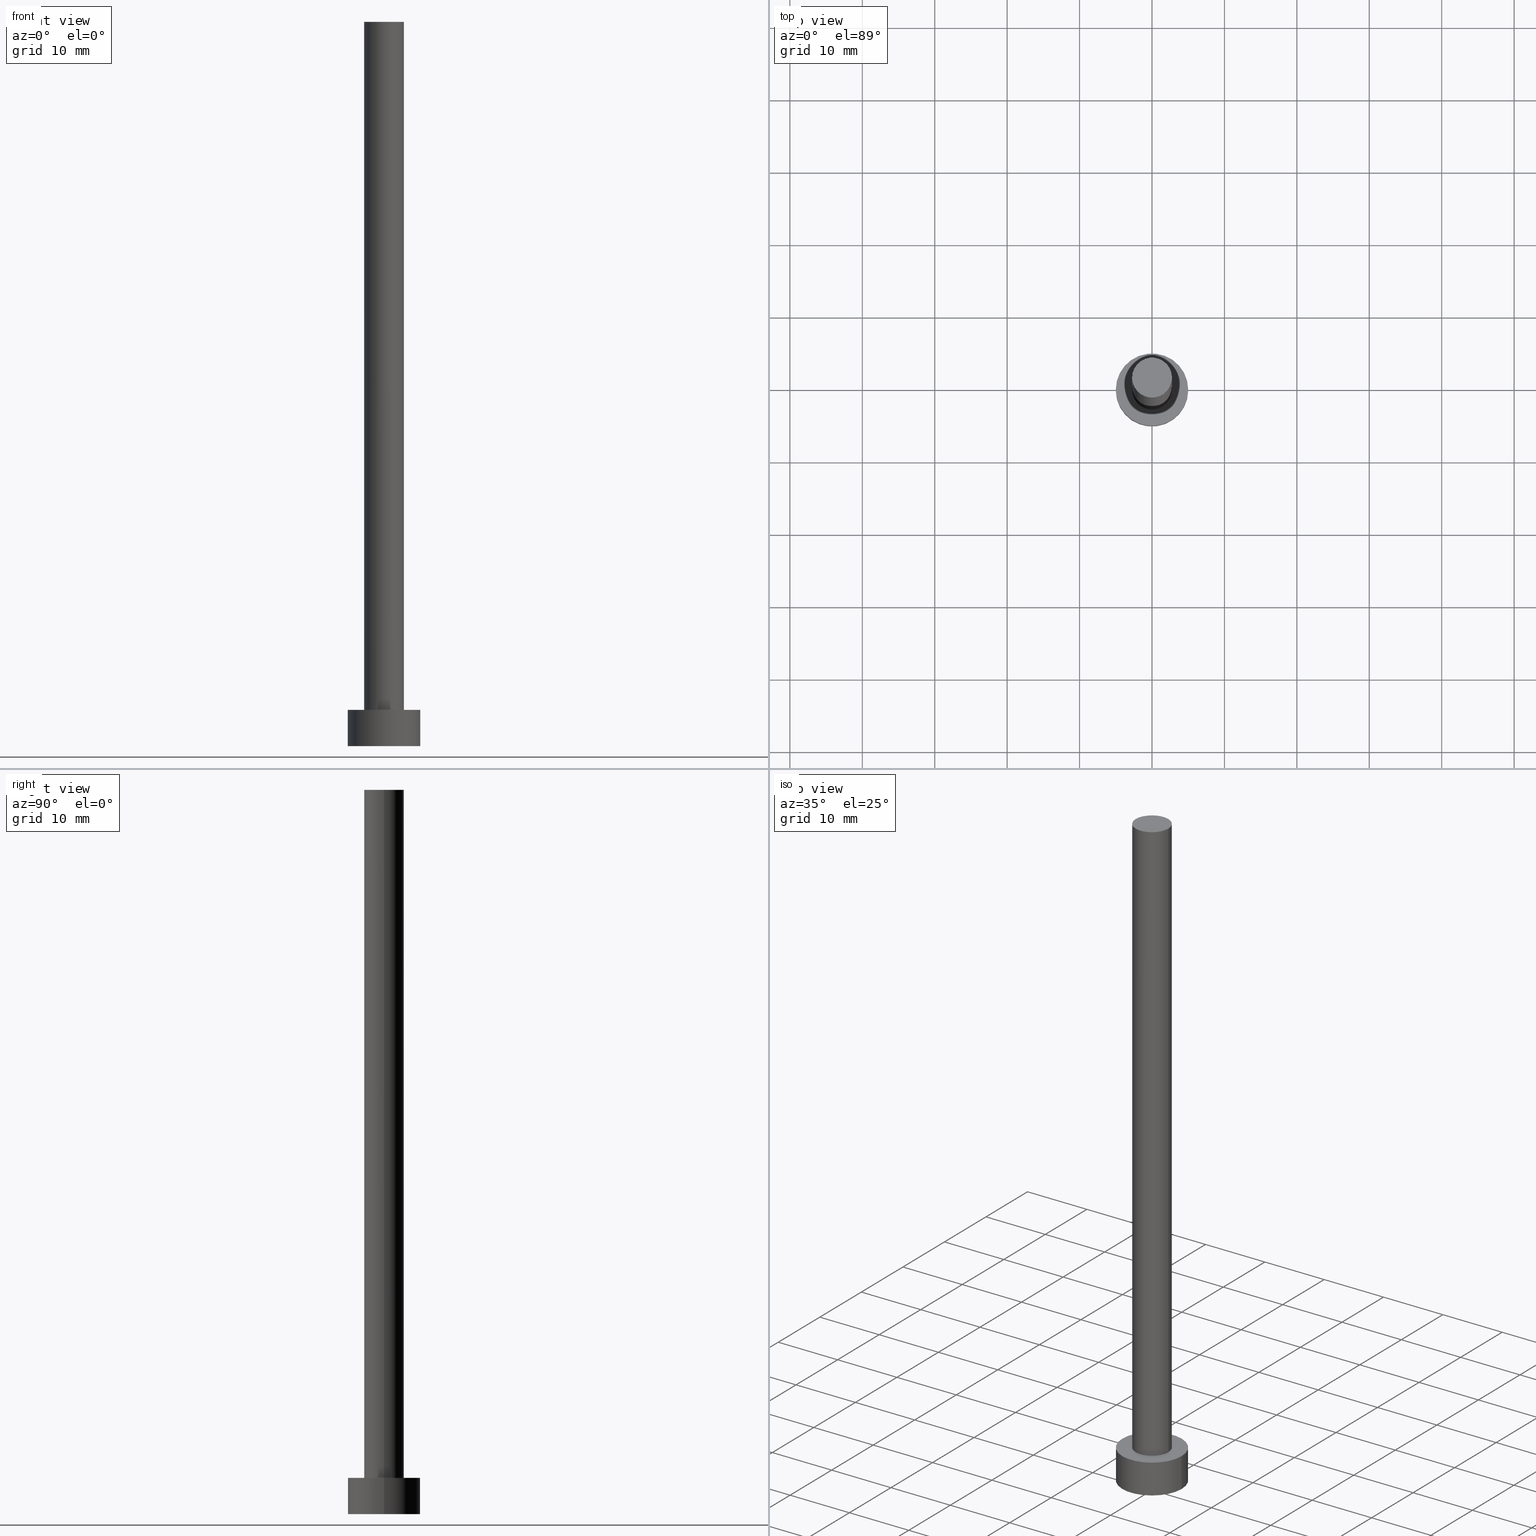
[diagram: canonical four-view strip — front | top / right | iso, engineering-drawing reading convention]
A machine part, canonical four-view strip (front | top / right | iso — engineering-drawing reading convention). The complete STEP part file that produces these views, byte-faithful:
ISO-10303-21;
HEADER;
FILE_DESCRIPTION (( 'STEP AP203' ),
    '1' );
FILE_NAME ('e686.STEP',
    '2023-02-13T16:02:20',
    ( '' ),
    ( '' ),
    'SwSTEP 2.0',
    'SolidWorks 2019',
    '' );
FILE_SCHEMA (( 'CONFIG_CONTROL_DESIGN' ));
ENDSEC;

DATA;
#1 = CARTESIAN_POINT ( 'NONE',  ( 0.000000000000000000, 0.000000000000000000, 5.000000000000000000 ) ) ;
#2 = CARTESIAN_POINT ( 'NONE',  ( 0.000000000000000000, 0.000000000000000000, 100.0000000000000000 ) ) ;
#3 = DIRECTION ( 'NONE',  ( 0.000000000000000000, 0.000000000000000000, 1.000000000000000000 ) ) ;
#4 = APPROVAL_PERSON_ORGANIZATION ( #132, #159, #179 ) ;
#5 = APPROVAL_PERSON_ORGANIZATION ( #103, #241, #72 ) ;
#6 = FACE_BOUND ( 'NONE', #122, .T. ) ;
#7 = AXIS2_PLACEMENT_3D ( 'NONE', #251, #81, #61 ) ;
#8 = PERSON_AND_ORGANIZATION ( #45, #143 ) ;
#9 = PERSON_AND_ORGANIZATION ( #45, #143 ) ;
#10 = ADVANCED_FACE ( 'NONE', ( #67 ), #150, .F. ) ;
#11 = DIRECTION ( 'NONE',  ( 1.000000000000000000, 0.000000000000000000, 0.000000000000000000 ) ) ;
#12 = CIRCLE ( 'NONE', #40, 2.750000000000000000 ) ;
#13 = APPROVAL ( #94, 'NEUR�EN�' ) ;
#14 = CARTESIAN_POINT ( 'NONE',  ( 0.000000000000000000, 0.000000000000000000, 0.000000000000000000 ) ) ;
#15 = ORIENTED_EDGE ( 'NONE', *, *, #176, .T. ) ;
#16 = ORIENTED_EDGE ( 'NONE', *, *, #37, .T. ) ;
#17 = DIRECTION ( 'NONE',  ( -0.000000000000000000, -0.000000000000000000, -1.000000000000000000 ) ) ;
#18 = CYLINDRICAL_SURFACE ( 'NONE', #47, 2.750000000000000000 ) ;
#19 = EDGE_CURVE ( 'NONE', #38, #91, #144, .T. ) ;
#20 = CARTESIAN_POINT ( 'NONE',  ( 0.000000000000000000, 0.000000000000000000, 0.000000000000000000 ) ) ;
#21 = CARTESIAN_POINT ( 'NONE',  ( 0.000000000000000000, 0.000000000000000000, 5.000000000000000000 ) ) ;
#22 = CARTESIAN_POINT ( 'NONE',  ( 0.000000000000000000, 0.000000000000000000, 5.000000000000000000 ) ) ;
#23 = CIRCLE ( 'NONE', #162, 5.000000000000000000 ) ;
#24 = VECTOR ( 'NONE', #196, 1000.000000000000000 ) ;
#25 = PRODUCT ( 'e686', 'e686', '', ( #82 ) ) ;
#26 = PERSON_AND_ORGANIZATION ( #45, #143 ) ;
#27 = SECURITY_CLASSIFICATION_LEVEL ( 'unclassified' ) ;
#28 = CALENDAR_DATE ( 2023, 13, 2 ) ;
#29 = PERSON_AND_ORGANIZATION ( #45, #143 ) ;
#30 = AXIS2_PLACEMENT_3D ( 'NONE', #225, #148, #43 ) ;
#31 = ORIENTED_EDGE ( 'NONE', *, *, #125, .T. ) ;
#32 = EDGE_CURVE ( 'NONE', #173, #184, #54, .T. ) ;
#33 = ORIENTED_EDGE ( 'NONE', *, *, #37, .F. ) ;
#34 = ORIENTED_EDGE ( 'NONE', *, *, #209, .T. ) ;
#35 = DIRECTION ( 'NONE',  ( -1.000000000000000000, 0.000000000000000000, 0.000000000000000000 ) ) ;
#36 = ORIENTED_EDGE ( 'NONE', *, *, #217, .F. ) ;
#37 = EDGE_CURVE ( 'NONE', #173, #252, #44, .T. ) ;
#38 = VERTEX_POINT ( 'NONE', #39 ) ;
#39 = CARTESIAN_POINT ( 'NONE',  ( 5.000000000000000000, 6.123233995736766282E-16, 0.000000000000000000 ) ) ;
#40 = AXIS2_PLACEMENT_3D ( 'NONE', #111, #227, #11 ) ;
#41 = LOCAL_TIME ( 17, 2, 20.00000000000000000, #73 ) ;
#42 = DIRECTION ( 'NONE',  ( 1.000000000000000000, 0.000000000000000000, -0.000000000000000000 ) ) ;
#43 = DIRECTION ( 'NONE',  ( 1.000000000000000000, 0.000000000000000000, 0.000000000000000000 ) ) ;
#44 = LINE ( 'NONE', #224, #24 ) ;
#45 = PERSON ( 'NEUR�EN�', 'NEUR�EN�', 'NEUR�EN�', ('NEUR�EN�'), ('NEUR�EN�'), ('NEUR�EN�') ) ;
#46 = CARTESIAN_POINT ( 'NONE',  ( 2.750000000000000000, 3.367778697655221012E-16, 5.000000000000000000 ) ) ;
#47 = AXIS2_PLACEMENT_3D ( 'NONE', #165, #149, #88 ) ;
#48 = CC_DESIGN_APPROVAL ( #241, ( #49 ) ) ;
#49 = PRODUCT_DEFINITION ( 'NEZN�M�', '', #158, #175 ) ;
#50 = DIRECTION ( 'NONE',  ( 1.000000000000000000, 0.000000000000000000, 0.000000000000000000 ) ) ;
#51 = CALENDAR_DATE ( 2023, 13, 2 ) ;
#52 = ADVANCED_FACE ( 'NONE', ( #108 ), #192, .T. ) ;
#53 = APPROVAL_DATE_TIME ( #56, #13 ) ;
#54 = CIRCLE ( 'NONE', #112, 2.750000000000000000 ) ;
#55 = CC_DESIGN_DATE_AND_TIME_ASSIGNMENT ( #133, #156, ( #49 ) ) ;
#56 = DATE_AND_TIME ( #51, #154 ) ;
#57 =( LENGTH_UNIT ( ) NAMED_UNIT ( * ) SI_UNIT ( .MILLI., .METRE. ) );
#58 = ADVANCED_FACE ( 'NONE', ( #6, #87 ), #126, .T. ) ;
#59 = AXIS2_PLACEMENT_3D ( 'NONE', #1, #17, #106 ) ;
#60 = PERSON_AND_ORGANIZATION ( #45, #143 ) ;
#61 = DIRECTION ( 'NONE',  ( 1.000000000000000000, 0.000000000000000000, 0.000000000000000000 ) ) ;
#62 = EDGE_LOOP ( 'NONE', ( #253, #161, #31, #34 ) ) ;
#63 = PRODUCT_RELATED_PRODUCT_CATEGORY ( 'detail', '', ( #25 ) ) ;
#64 = VERTEX_POINT ( 'NONE', #152 ) ;
#65 = DIRECTION ( 'NONE',  ( 1.000000000000000000, 0.000000000000000000, 0.000000000000000000 ) ) ;
#66 = LINE ( 'NONE', #68, #254 ) ;
#67 = FACE_OUTER_BOUND ( 'NONE', #203, .T. ) ;
#68 = CARTESIAN_POINT ( 'NONE',  ( -5.000000000000000000, 0.000000000000000000, 5.000000000000000000 ) ) ;
#69 = LOCAL_TIME ( 17, 2, 20.00000000000000000, #138 ) ;
#70 = DIRECTION ( 'NONE',  ( 1.000000000000000000, 0.000000000000000000, -0.000000000000000000 ) ) ;
#71 = DATE_AND_TIME ( #210, #223 ) ;
#72 = APPROVAL_ROLE ( '' ) ;
#73 = COORDINATED_UNIVERSAL_TIME_OFFSET ( 1, 0, .AHEAD. ) ;
#74 = DATE_AND_TIME ( #28, #204 ) ;
#75 = CARTESIAN_POINT ( 'NONE',  ( -5.000000000000000000, 0.000000000000000000, 5.000000000000000000 ) ) ;
#76 = ADVANCED_FACE ( 'NONE', ( #242 ), #206, .T. ) ;
#77 = ORIENTED_EDGE ( 'NONE', *, *, #125, .F. ) ;
#78 = EDGE_LOOP ( 'NONE', ( #33, #104, #166, #183 ) ) ;
#79 = DIRECTION ( 'NONE',  ( 1.000000000000000000, 0.000000000000000000, 0.000000000000000000 ) ) ;
#80 = ORIENTED_EDGE ( 'NONE', *, *, #250, .F. ) ;
#81 = DIRECTION ( 'NONE',  ( 0.000000000000000000, 0.000000000000000000, 1.000000000000000000 ) ) ;
#82 = MECHANICAL_CONTEXT ( 'NONE', #115, 'mechanical' ) ;
#83 = EDGE_LOOP ( 'NONE', ( #36, #15, #120, #77 ) ) ;
#84 = VECTOR ( 'NONE', #195, 1000.000000000000000 ) ;
#85 = DIRECTION ( 'NONE',  ( -0.000000000000000000, -0.000000000000000000, -1.000000000000000000 ) ) ;
#86 = CARTESIAN_POINT ( 'NONE',  ( 0.000000000000000000, 0.000000000000000000, 100.0000000000000000 ) ) ;
#87 = FACE_OUTER_BOUND ( 'NONE', #101, .T. ) ;
#88 = DIRECTION ( 'NONE',  ( -1.000000000000000000, 0.000000000000000000, 0.000000000000000000 ) ) ;
#89 = CARTESIAN_POINT ( 'NONE',  ( 0.000000000000000000, 0.000000000000000000, 100.0000000000000000 ) ) ;
#90 =( NAMED_UNIT ( * ) SI_UNIT ( $, .STERADIAN. ) SOLID_ANGLE_UNIT ( ) );
#91 = VERTEX_POINT ( 'NONE', #190 ) ;
#92 = CYLINDRICAL_SURFACE ( 'NONE', #180, 5.000000000000000000 ) ;
#93 = AXIS2_PLACEMENT_3D ( 'NONE', #110, #170, #240 ) ;
#94 = APPROVAL_STATUS ( 'not_yet_approved' ) ;
#95 = CC_DESIGN_PERSON_AND_ORGANIZATION_ASSIGNMENT ( #8, #231, ( #158 ) ) ;
#96 = DATE_AND_TIME ( #211, #41 ) ;
#97 = DIRECTION ( 'NONE',  ( 0.000000000000000000, 0.000000000000000000, 1.000000000000000000 ) ) ;
#98 = ADVANCED_FACE ( 'NONE', ( #201 ), #219, .T. ) ;
#99 = APPLICATION_PROTOCOL_DEFINITION ( 'international standard', 'config_control_design', 1994, #140 ) ;
#100 = DIRECTION ( 'NONE',  ( 0.000000000000000000, 0.000000000000000000, 1.000000000000000000 ) ) ;
#101 = EDGE_LOOP ( 'NONE', ( #215, #249 ) ) ;
#102 = CLOSED_SHELL ( 'NONE', ( #76, #243, #98, #58, #10, #197, #52 ) ) ;
#103 = PERSON_AND_ORGANIZATION ( #45, #143 ) ;
#104 = ORIENTED_EDGE ( 'NONE', *, *, #178, .F. ) ;
#105 = EDGE_LOOP ( 'NONE', ( #238, #255 ) ) ;
#106 = DIRECTION ( 'NONE',  ( -1.000000000000000000, 0.000000000000000000, 0.000000000000000000 ) ) ;
#107 = AXIS2_PLACEMENT_3D ( 'NONE', #123, #169, #65 ) ;
#108 = FACE_OUTER_BOUND ( 'NONE', #105, .T. ) ;
#109 = DIRECTION ( 'NONE',  ( 0.000000000000000000, 0.000000000000000000, 1.000000000000000000 ) ) ;
#110 = CARTESIAN_POINT ( 'NONE',  ( 0.000000000000000000, 0.000000000000000000, 0.000000000000000000 ) ) ;
#111 = CARTESIAN_POINT ( 'NONE',  ( 0.000000000000000000, 0.000000000000000000, 5.000000000000000000 ) ) ;
#112 = AXIS2_PLACEMENT_3D ( 'NONE', #86, #226, #194 ) ;
#113 = CC_DESIGN_PERSON_AND_ORGANIZATION_ASSIGNMENT ( #26, #212, ( #158 ) ) ;
#114 = SHAPE_DEFINITION_REPRESENTATION ( #244, #145 ) ;
#115 = APPLICATION_CONTEXT ( 'configuration controlled 3d designs of mechanical parts and assemblies' ) ;
#116 = CC_DESIGN_PERSON_AND_ORGANIZATION_ASSIGNMENT ( #60, #218, ( #25 ) ) ;
#117 = CC_DESIGN_SECURITY_CLASSIFICATION ( #198, ( #158 ) ) ;
#118 = PERSON_AND_ORGANIZATION_ROLE ( 'classification_officer' ) ;
#119 = AXIS2_PLACEMENT_3D ( 'NONE', #89, #141, #35 ) ;
#120 = ORIENTED_EDGE ( 'NONE', *, *, #19, .T. ) ;
#121 = ORIENTED_EDGE ( 'NONE', *, *, #250, .T. ) ;
#122 = EDGE_LOOP ( 'NONE', ( #199, #80 ) ) ;
#123 = CARTESIAN_POINT ( 'NONE',  ( 0.000000000000000000, 0.000000000000000000, 100.0000000000000000 ) ) ;
#124 = CARTESIAN_POINT ( 'NONE',  ( 0.000000000000000000, 0.000000000000000000, 5.000000000000000000 ) ) ;
#125 = EDGE_CURVE ( 'NONE', #220, #91, #66, .T. ) ;
#126 = PLANE ( 'NONE',  #168 ) ;
#127 = LINE ( 'NONE', #153, #84 ) ;
#128 = AXIS2_PLACEMENT_3D ( 'NONE', #21, #237, #185 ) ;
#129 = CARTESIAN_POINT ( 'NONE',  ( 0.000000000000000000, 0.000000000000000000, 5.000000000000000000 ) ) ;
#130 = CC_DESIGN_APPROVAL ( #13, ( #158 ) ) ;
#131 = AXIS2_PLACEMENT_3D ( 'NONE', #20, #109, #70 ) ;
#132 = PERSON_AND_ORGANIZATION ( #45, #143 ) ;
#133 = DATE_AND_TIME ( #245, #69 ) ;
#134 = PERSON_AND_ORGANIZATION ( #45, #143 ) ;
#135 = DIRECTION ( 'NONE',  ( -1.000000000000000000, 0.000000000000000000, 0.000000000000000000 ) ) ;
#136 = APPROVAL_STATUS ( 'not_yet_approved' ) ;
#137 =( NAMED_UNIT ( * ) PLANE_ANGLE_UNIT ( ) SI_UNIT ( $, .RADIAN. ) );
#138 = COORDINATED_UNIVERSAL_TIME_OFFSET ( 1, 0, .AHEAD. ) ;
#139 = EDGE_LOOP ( 'NONE', ( #216, #16, #121, #236 ) ) ;
#140 = APPLICATION_CONTEXT ( 'configuration controlled 3d designs of mechanical parts and assemblies' ) ;
#141 = DIRECTION ( 'NONE',  ( -0.000000000000000000, -0.000000000000000000, -1.000000000000000000 ) ) ;
#142 = CIRCLE ( 'NONE', #7, 5.000000000000000000 ) ;
#143 = ORGANIZATION ( 'NEUR�EN�', 'NEUR�EN�', '' ) ;
#144 = CIRCLE ( 'NONE', #93, 5.000000000000000000 ) ;
#145 = ADVANCED_BREP_SHAPE_REPRESENTATION ( 'e686', ( #191, #229 ), #163 ) ;
#146 = ORIENTED_EDGE ( 'NONE', *, *, #19, .F. ) ;
#147 = CARTESIAN_POINT ( 'NONE',  ( -2.750000000000000000, 0.000000000000000000, 100.0000000000000000 ) ) ;
#148 = DIRECTION ( 'NONE',  ( 0.000000000000000000, 0.000000000000000000, 1.000000000000000000 ) ) ;
#149 = DIRECTION ( 'NONE',  ( -0.000000000000000000, -0.000000000000000000, -1.000000000000000000 ) ) ;
#150 = PLANE ( 'NONE',  #131 ) ;
#151 = CC_DESIGN_PERSON_AND_ORGANIZATION_ASSIGNMENT ( #134, #118, ( #198 ) ) ;
#152 = CARTESIAN_POINT ( 'NONE',  ( -2.750000000000000000, 0.000000000000000000, 5.000000000000000000 ) ) ;
#153 = CARTESIAN_POINT ( 'NONE',  ( -2.750000000000000000, 0.000000000000000000, 100.0000000000000000 ) ) ;
#154 = LOCAL_TIME ( 17, 2, 20.00000000000000000, #232 ) ;
#155 = CIRCLE ( 'NONE', #30, 5.000000000000000000 ) ;
#156 = DATE_TIME_ROLE ( 'creation_date' ) ;
#157 = PERSON_AND_ORGANIZATION_ROLE ( 'creator' ) ;
#158 = PRODUCT_DEFINITION_FORMATION_WITH_SPECIFIED_SOURCE ( 'LIBOVOLN�', '', #25, .NOT_KNOWN. ) ;
#159 = APPROVAL ( #136, 'NEUR�EN�' ) ;
#160 = DIRECTION ( 'NONE',  ( -0.000000000000000000, -0.000000000000000000, -1.000000000000000000 ) ) ;
#161 = ORIENTED_EDGE ( 'NONE', *, *, #167, .F. ) ;
#162 = AXIS2_PLACEMENT_3D ( 'NONE', #129, #97, #50 ) ;
#163 =( GEOMETRIC_REPRESENTATION_CONTEXT ( 3 ) GLOBAL_UNCERTAINTY_ASSIGNED_CONTEXT ( ( #228 ) ) GLOBAL_UNIT_ASSIGNED_CONTEXT ( ( #57, #137, #90 ) ) REPRESENTATION_CONTEXT ( 'NONE', 'WORKASPACE' ) );
#164 = APPLICATION_PROTOCOL_DEFINITION ( 'international standard', 'config_control_design', 1994, #115 ) ;
#165 = CARTESIAN_POINT ( 'NONE',  ( 0.000000000000000000, 0.000000000000000000, 100.0000000000000000 ) ) ;
#166 = ORIENTED_EDGE ( 'NONE', *, *, #213, .T. ) ;
#167 = EDGE_CURVE ( 'NONE', #220, #187, #155, .T. ) ;
#168 = AXIS2_PLACEMENT_3D ( 'NONE', #124, #3, #171 ) ;
#169 = DIRECTION ( 'NONE',  ( 0.000000000000000000, 0.000000000000000000, 1.000000000000000000 ) ) ;
#170 = DIRECTION ( 'NONE',  ( 0.000000000000000000, 0.000000000000000000, 1.000000000000000000 ) ) ;
#171 = DIRECTION ( 'NONE',  ( 1.000000000000000000, 0.000000000000000000, -0.000000000000000000 ) ) ;
#172 = CARTESIAN_POINT ( 'NONE',  ( 5.000000000000000000, 6.123233995736766282E-16, 5.000000000000000000 ) ) ;
#173 = VERTEX_POINT ( 'NONE', #239 ) ;
#174 = DIRECTION ( 'NONE',  ( 0.000000000000000000, 0.000000000000000000, 1.000000000000000000 ) ) ;
#175 = DESIGN_CONTEXT ( 'detailed design', #140, 'design' ) ;
#176 = EDGE_CURVE ( 'NONE', #187, #38, #193, .T. ) ;
#177 = COORDINATED_UNIVERSAL_TIME_OFFSET ( 1, 0, .AHEAD. ) ;
#178 = EDGE_CURVE ( 'NONE', #184, #173, #214, .T. ) ;
#179 = APPROVAL_ROLE ( '' ) ;
#180 = AXIS2_PLACEMENT_3D ( 'NONE', #22, #160, #135 ) ;
#181 = APPROVAL_PERSON_ORGANIZATION ( #29, #13, #230 ) ;
#182 = AXIS2_PLACEMENT_3D ( 'NONE', #2, #174, #42 ) ;
#183 = ORIENTED_EDGE ( 'NONE', *, *, #200, .T. ) ;
#184 = VERTEX_POINT ( 'NONE', #147 ) ;
#185 = DIRECTION ( 'NONE',  ( 1.000000000000000000, 0.000000000000000000, 0.000000000000000000 ) ) ;
#186 = CC_DESIGN_PERSON_AND_ORGANIZATION_ASSIGNMENT ( #9, #157, ( #49 ) ) ;
#187 = VERTEX_POINT ( 'NONE', #172 ) ;
#188 = CC_DESIGN_APPROVAL ( #159, ( #198 ) ) ;
#189 = VECTOR ( 'NONE', #221, 1000.000000000000000 ) ;
#190 = CARTESIAN_POINT ( 'NONE',  ( -5.000000000000000000, 0.000000000000000000, 0.000000000000000000 ) ) ;
#191 = MANIFOLD_SOLID_BREP ( 'P�idat vysunut�m3', #102 ) ;
#192 = PLANE ( 'NONE',  #182 ) ;
#193 = LINE ( 'NONE', #207, #189 ) ;
#194 = DIRECTION ( 'NONE',  ( 1.000000000000000000, 0.000000000000000000, 0.000000000000000000 ) ) ;
#195 = DIRECTION ( 'NONE',  ( -0.000000000000000000, -0.000000000000000000, -1.000000000000000000 ) ) ;
#196 = DIRECTION ( 'NONE',  ( -0.000000000000000000, -0.000000000000000000, -1.000000000000000000 ) ) ;
#197 = ADVANCED_FACE ( 'NONE', ( #205 ), #18, .T. ) ;
#198 = SECURITY_CLASSIFICATION ( '', '', #27 ) ;
#199 = ORIENTED_EDGE ( 'NONE', *, *, #200, .F. ) ;
#200 = EDGE_CURVE ( 'NONE', #64, #252, #222, .T. ) ;
#201 = FACE_OUTER_BOUND ( 'NONE', #62, .T. ) ;
#202 = CC_DESIGN_DATE_AND_TIME_ASSIGNMENT ( #96, #235, ( #198 ) ) ;
#203 = EDGE_LOOP ( 'NONE', ( #248, #146 ) ) ;
#204 = LOCAL_TIME ( 17, 2, 20.00000000000000000, #246 ) ;
#205 = FACE_OUTER_BOUND ( 'NONE', #78, .T. ) ;
#206 = CYLINDRICAL_SURFACE ( 'NONE', #119, 2.750000000000000000 ) ;
#207 = CARTESIAN_POINT ( 'NONE',  ( 5.000000000000000000, 6.123233995736766282E-16, 5.000000000000000000 ) ) ;
#208 = APPROVAL_DATE_TIME ( #74, #159 ) ;
#209 = EDGE_CURVE ( 'NONE', #91, #38, #142, .T. ) ;
#210 = CALENDAR_DATE ( 2023, 13, 2 ) ;
#211 = CALENDAR_DATE ( 2023, 13, 2 ) ;
#212 = PERSON_AND_ORGANIZATION_ROLE ( 'creator' ) ;
#213 = EDGE_CURVE ( 'NONE', #184, #64, #127, .T. ) ;
#214 = CIRCLE ( 'NONE', #107, 2.750000000000000000 ) ;
#215 = ORIENTED_EDGE ( 'NONE', *, *, #167, .T. ) ;
#216 = ORIENTED_EDGE ( 'NONE', *, *, #32, .F. ) ;
#217 = EDGE_CURVE ( 'NONE', #187, #220, #23, .T. ) ;
#218 = PERSON_AND_ORGANIZATION_ROLE ( 'design_owner' ) ;
#219 = CYLINDRICAL_SURFACE ( 'NONE', #59, 5.000000000000000000 ) ;
#220 = VERTEX_POINT ( 'NONE', #75 ) ;
#221 = DIRECTION ( 'NONE',  ( -0.000000000000000000, -0.000000000000000000, -1.000000000000000000 ) ) ;
#222 = CIRCLE ( 'NONE', #128, 2.750000000000000000 ) ;
#223 = LOCAL_TIME ( 17, 2, 20.00000000000000000, #177 ) ;
#224 = CARTESIAN_POINT ( 'NONE',  ( 2.750000000000000000, 3.367778697655221012E-16, 100.0000000000000000 ) ) ;
#225 = CARTESIAN_POINT ( 'NONE',  ( 0.000000000000000000, 0.000000000000000000, 5.000000000000000000 ) ) ;
#226 = DIRECTION ( 'NONE',  ( 0.000000000000000000, 0.000000000000000000, 1.000000000000000000 ) ) ;
#227 = DIRECTION ( 'NONE',  ( 0.000000000000000000, 0.000000000000000000, 1.000000000000000000 ) ) ;
#228 = UNCERTAINTY_MEASURE_WITH_UNIT (LENGTH_MEASURE( 1.000000000000000082E-05 ), #57, 'distance_accuracy_value', 'NONE');
#229 = AXIS2_PLACEMENT_3D ( 'NONE', #14, #100, #79 ) ;
#230 = APPROVAL_ROLE ( '' ) ;
#231 = PERSON_AND_ORGANIZATION_ROLE ( 'design_supplier' ) ;
#232 = COORDINATED_UNIVERSAL_TIME_OFFSET ( 1, 0, .AHEAD. ) ;
#233 = APPROVAL_DATE_TIME ( #71, #241 ) ;
#234 = FACE_OUTER_BOUND ( 'NONE', #83, .T. ) ;
#235 = DATE_TIME_ROLE ( 'classification_date' ) ;
#236 = ORIENTED_EDGE ( 'NONE', *, *, #213, .F. ) ;
#237 = DIRECTION ( 'NONE',  ( 0.000000000000000000, 0.000000000000000000, 1.000000000000000000 ) ) ;
#238 = ORIENTED_EDGE ( 'NONE', *, *, #178, .T. ) ;
#239 = CARTESIAN_POINT ( 'NONE',  ( 2.750000000000000000, 3.367778697655221012E-16, 100.0000000000000000 ) ) ;
#240 = DIRECTION ( 'NONE',  ( 1.000000000000000000, 0.000000000000000000, 0.000000000000000000 ) ) ;
#241 = APPROVAL ( #247, 'NEUR�EN�' ) ;
#242 = FACE_OUTER_BOUND ( 'NONE', #139, .T. ) ;
#243 = ADVANCED_FACE ( 'NONE', ( #234 ), #92, .T. ) ;
#244 = PRODUCT_DEFINITION_SHAPE ( 'NONE', 'NONE',  #49 ) ;
#245 = CALENDAR_DATE ( 2023, 13, 2 ) ;
#246 = COORDINATED_UNIVERSAL_TIME_OFFSET ( 1, 0, .AHEAD. ) ;
#247 = APPROVAL_STATUS ( 'not_yet_approved' ) ;
#248 = ORIENTED_EDGE ( 'NONE', *, *, #209, .F. ) ;
#249 = ORIENTED_EDGE ( 'NONE', *, *, #217, .T. ) ;
#250 = EDGE_CURVE ( 'NONE', #252, #64, #12, .T. ) ;
#251 = CARTESIAN_POINT ( 'NONE',  ( 0.000000000000000000, 0.000000000000000000, 0.000000000000000000 ) ) ;
#252 = VERTEX_POINT ( 'NONE', #46 ) ;
#253 = ORIENTED_EDGE ( 'NONE', *, *, #176, .F. ) ;
#254 = VECTOR ( 'NONE', #85, 1000.000000000000000 ) ;
#255 = ORIENTED_EDGE ( 'NONE', *, *, #32, .T. ) ;
ENDSEC;
END-ISO-10303-21;
